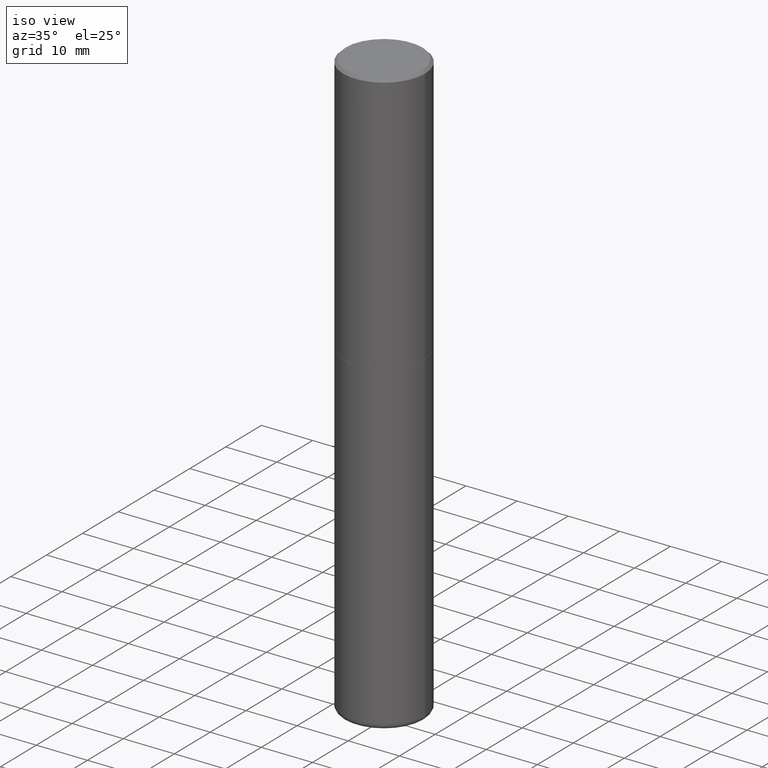
[diagram: clean part render]
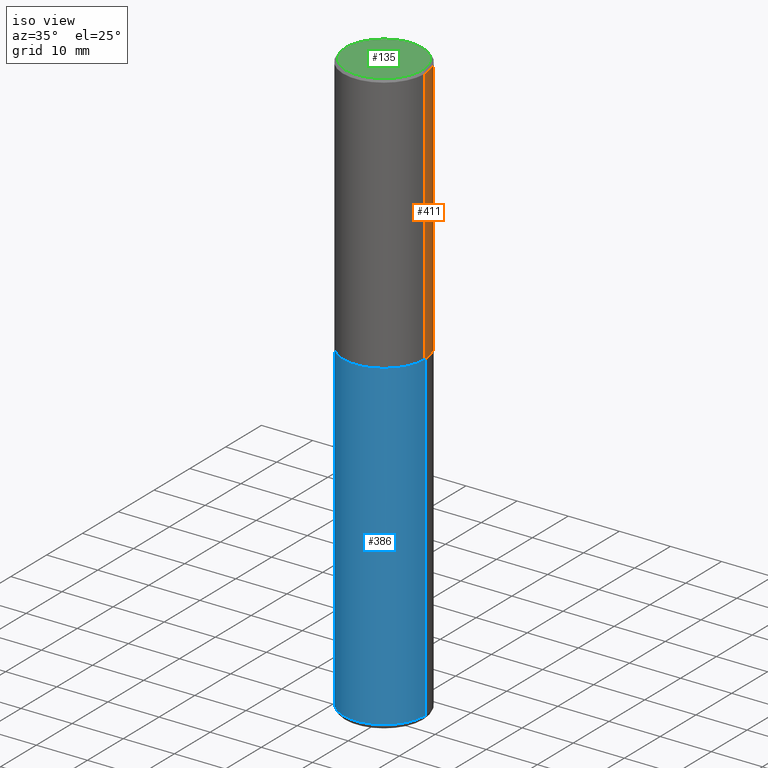
[diagram: same view with three faces highlighted in distinct colors, each labeled with its STEP entity id]
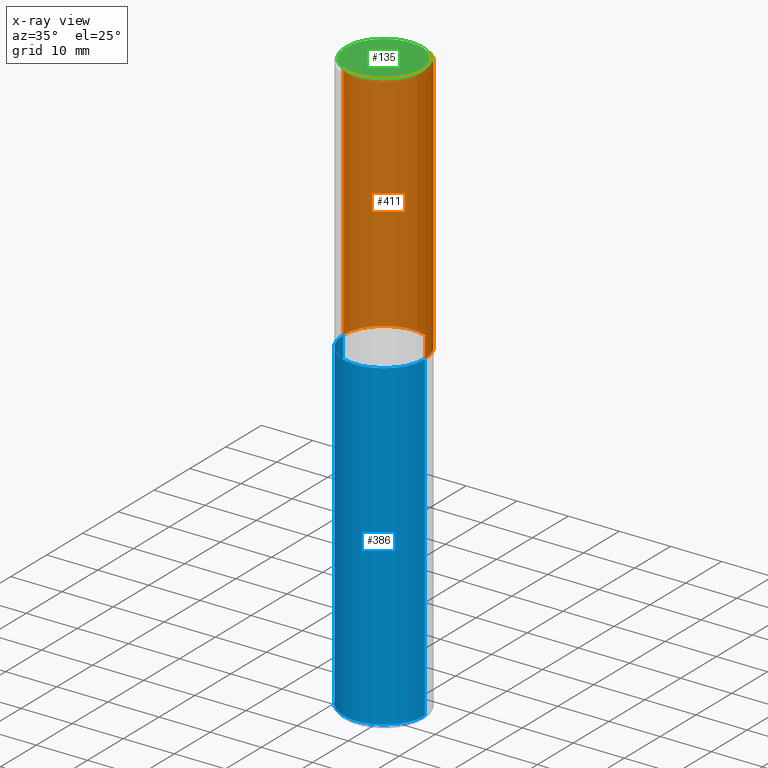
[diagram: x-ray of the same camera — body ghosted, the three highlighted faces saturated]
A machine part, iso view with three faces highlighted in distinct colors.
The next image is the same camera in x-ray (body ghosted, the three faces saturated) — at least one of them is partly hidden behind the body in this view.
Their STEP definitions:

[orange] entity #411 — the highlighted cylindrical surface (partial cylindrical patch) has radius 7.9997 mm, axis along (-0, 0, 1).
#7 = DIRECTION ( 'NONE',  ( 1.000000000000000000, -6.982962677686267499E-15, 0.000000000000000000 ) ) ;
#8 = EDGE_CURVE ( 'NONE', #146, #207, #82, .T. ) ;
#12 = AXIS2_PLACEMENT_3D ( 'NONE', #37, #226, #35 ) ;
#35 = DIRECTION ( 'NONE',  ( 1.000000000000000000, -6.982962677686265922E-15, 0.000000000000000000 ) ) ;
#37 = CARTESIAN_POINT ( 'NONE',  ( 4.890937612370289799E-31, -6.982962677686315028E-17, -0.02000000000000006981 ) ) ;
#40 = EDGE_CURVE ( 'NONE', #53, #216, #125, .T. ) ;
#46 = AXIS2_PLACEMENT_3D ( 'NONE', #96, #171, #7 ) ;
#51 = DIRECTION ( 'NONE',  ( -2.445468806185136597E-29, 3.491481338843145583E-15, 1.000000000000000000 ) ) ;
#53 = VERTEX_POINT ( 'NONE', #55 ) ;
#55 = CARTESIAN_POINT ( 'NONE',  ( -0.3149500000000002853, -1.300587416574145677E-15, -2.006899999999999906 ) ) ;
#82 = LINE ( 'NONE', #220, #211 ) ;
#85 = FACE_OUTER_BOUND ( 'NONE', #376, .T. ) ;
#96 = CARTESIAN_POINT ( 'NONE',  ( 4.907811347132950267E-29, -7.007053898924307914E-15, -2.006899999999999906 ) ) ;
#113 = ORIENTED_EDGE ( 'NONE', *, *, #8, .F. ) ;
#115 = DIRECTION ( 'NONE',  ( 1.000000000000000000, -6.982962677686266711E-15, 4.876176775795936353E-29 ) ) ;
#125 = LINE ( 'NONE', #128, #404 ) ;
#128 = CARTESIAN_POINT ( 'NONE',  ( -0.3149500000000000632, 2.237854346276435985E-15, -1.549218606675782956E-29 ) ) ;
#146 = VERTEX_POINT ( 'NONE', #412 ) ;
#168 = EDGE_CURVE ( 'NONE', #146, #53, #347, .T. ) ;
#171 = DIRECTION ( 'NONE',  ( -2.445468806185136597E-29, 3.491481338843145583E-15, 1.000000000000000000 ) ) ;
#190 = DIRECTION ( 'NONE',  ( -2.445468806185136877E-29, 3.491481338843145188E-15, 1.000000000000000000 ) ) ;
#193 = CARTESIAN_POINT ( 'NONE',  ( -0.3149499999999998967, 2.129454468560425784E-15, -0.02000000000000006981 ) ) ;
#195 = AXIS2_PLACEMENT_3D ( 'NONE', #273, #51, #115 ) ;
#197 = CYLINDRICAL_SURFACE ( 'NONE', #195, 0.3149500000000000632 ) ;
#201 = ORIENTED_EDGE ( 'NONE', *, *, #258, .F. ) ;
#207 = VERTEX_POINT ( 'NONE', #319 ) ;
#211 = VECTOR ( 'NONE', #190, 39.37007874015748143 ) ;
#216 = VERTEX_POINT ( 'NONE', #193 ) ;
#220 = CARTESIAN_POINT ( 'NONE',  ( 0.3149500000000000632, -2.199284095337290265E-15, 1.535751875536930410E-29 ) ) ;
#226 = DIRECTION ( 'NONE',  ( -2.445468806185136597E-29, 3.491481338843145583E-15, 1.000000000000000000 ) ) ;
#227 = DIRECTION ( 'NONE',  ( -2.445468806185136877E-29, 3.491481338843145188E-15, 1.000000000000000000 ) ) ;
#251 = ORIENTED_EDGE ( 'NONE', *, *, #40, .T. ) ;
#258 = EDGE_CURVE ( 'NONE', #207, #216, #393, .T. ) ;
#273 = CARTESIAN_POINT ( 'NONE',  ( 0.000000000000000000, 0.000000000000000000, 0.000000000000000000 ) ) ;
#300 = ORIENTED_EDGE ( 'NONE', *, *, #168, .T. ) ;
#319 = CARTESIAN_POINT ( 'NONE',  ( 0.3149499999999998967, -2.230543471175006266E-15, -0.02000000000000006981 ) ) ;
#347 = CIRCLE ( 'NONE', #46, 0.3149500000000002853 ) ;
#376 = EDGE_LOOP ( 'NONE', ( #300, #251, #201, #113 ) ) ;
#393 = CIRCLE ( 'NONE', #12, 0.3149499999999998967 ) ;
#404 = VECTOR ( 'NONE', #227, 39.37007874015748143 ) ;
#411 = ADVANCED_FACE ( 'NONE', ( #85 ), #197, .T. ) ;
#412 = CARTESIAN_POINT ( 'NONE',  ( 0.3149500000000002853, -9.206337994261599363E-15, -2.006899999999999906 ) ) ;

[blue] entity #386 — the highlighted cylindrical surface (partial cylindrical patch) has radius 7.9997 mm, axis along (-0, 0, 1).
#19 = VERTEX_POINT ( 'NONE', #192 ) ;
#30 = DIRECTION ( 'NONE',  ( -2.445468806185136877E-29, 3.491481338843145188E-15, 1.000000000000000000 ) ) ;
#47 = CARTESIAN_POINT ( 'NONE',  ( -0.3149500000000000077, 2.237854346276435590E-15, -1.549218606675782676E-29 ) ) ;
#56 = VECTOR ( 'NONE', #365, 39.37007874015748143 ) ;
#63 = VECTOR ( 'NONE', #30, 39.37007874015748143 ) ;
#88 = ORIENTED_EDGE ( 'NONE', *, *, #111, .T. ) ;
#92 = DIRECTION ( 'NONE',  ( 1.000000000000000000, -6.982962677686263555E-15, 0.000000000000000000 ) ) ;
#94 = DIRECTION ( 'NONE',  ( -2.445468806185136597E-29, 3.491481338843145583E-15, 1.000000000000000000 ) ) ;
#105 = VERTEX_POINT ( 'NONE', #345 ) ;
#111 = EDGE_CURVE ( 'NONE', #304, #301, #315, .T. ) ;
#129 = CARTESIAN_POINT ( 'NONE',  ( 4.910256815939135870E-29, -7.010545380263151710E-15, -2.007899999999999796 ) ) ;
#134 = CIRCLE ( 'NONE', #221, 0.3149500000000000077 ) ;
#141 = AXIS2_PLACEMENT_3D ( 'NONE', #129, #388, #92 ) ;
#147 = CARTESIAN_POINT ( 'NONE',  ( 0.3149500000000000077, -9.209829475600440793E-15, -2.007899999999999796 ) ) ;
#151 = DIRECTION ( 'NONE',  ( 1.000000000000000000, -6.982962677686266711E-15, 4.876176775795936353E-29 ) ) ;
#153 = CARTESIAN_POINT ( 'NONE',  ( 0.3149500000000000077, -2.199284095337289871E-15, 1.535751875536930130E-29 ) ) ;
#155 = CARTESIAN_POINT ( 'NONE',  ( 0.3149500000000001743, -1.786975064033308982E-14, -4.488199999999999079 ) ) ;
#157 = FACE_OUTER_BOUND ( 'NONE', #373, .T. ) ;
#181 = DIRECTION ( 'NONE',  ( -2.445468806185136597E-29, 3.491481338843145583E-15, 1.000000000000000000 ) ) ;
#191 = EDGE_CURVE ( 'NONE', #105, #19, #416, .T. ) ;
#192 = CARTESIAN_POINT ( 'NONE',  ( -0.3149500000000000077, -9.102651616353041816E-15, -2.007899999999999796 ) ) ;
#217 = ORIENTED_EDGE ( 'NONE', *, *, #281, .T. ) ;
#221 = AXIS2_PLACEMENT_3D ( 'NONE', #392, #94, #233 ) ;
#232 = EDGE_CURVE ( 'NONE', #19, #301, #383, .T. ) ;
#233 = DIRECTION ( 'NONE',  ( 1.000000000000000000, -6.982962677686269866E-15, 0.000000000000000000 ) ) ;
#243 = ORIENTED_EDGE ( 'NONE', *, *, #191, .F. ) ;
#281 = EDGE_CURVE ( 'NONE', #105, #304, #134, .T. ) ;
#301 = VERTEX_POINT ( 'NONE', #147 ) ;
#304 = VERTEX_POINT ( 'NONE', #155 ) ;
#315 = LINE ( 'NONE', #153, #63 ) ;
#342 = CYLINDRICAL_SURFACE ( 'NONE', #417, 0.3149500000000000077 ) ;
#345 = CARTESIAN_POINT ( 'NONE',  ( -0.3149500000000001743, -1.343261219871936712E-14, -4.488199999999999079 ) ) ;
#365 = DIRECTION ( 'NONE',  ( -2.445468806185136877E-29, 3.491481338843145188E-15, 1.000000000000000000 ) ) ;
#368 = ORIENTED_EDGE ( 'NONE', *, *, #232, .F. ) ;
#372 = CARTESIAN_POINT ( 'NONE',  ( 0.000000000000000000, 0.000000000000000000, 0.000000000000000000 ) ) ;
#373 = EDGE_LOOP ( 'NONE', ( #243, #217, #88, #368 ) ) ;
#383 = CIRCLE ( 'NONE', #141, 0.3149500000000000077 ) ;
#386 = ADVANCED_FACE ( 'NONE', ( #157 ), #342, .T. ) ;
#388 = DIRECTION ( 'NONE',  ( -2.445468806185136597E-29, 3.491481338843145583E-15, 1.000000000000000000 ) ) ;
#392 = CARTESIAN_POINT ( 'NONE',  ( 1.097575309592012950E-28, -1.567046654499580152E-14, -4.488199999999999079 ) ) ;
#416 = LINE ( 'NONE', #47, #56 ) ;
#417 = AXIS2_PLACEMENT_3D ( 'NONE', #372, #181, #151 ) ;

[green] entity #135 — the highlighted planar face has unit normal (0, -0, -1).
#6 = EDGE_CURVE ( 'NONE', #248, #145, #142, .T. ) ;
#15 = DIRECTION ( 'NONE',  ( 1.000000000000000000, -6.982962677686265922E-15, 4.874125435057328359E-29 ) ) ;
#25 = AXIS2_PLACEMENT_3D ( 'NONE', #381, #222, #189 ) ;
#32 = AXIS2_PLACEMENT_3D ( 'NONE', #206, #246, #15 ) ;
#77 = AXIS2_PLACEMENT_3D ( 'NONE', #149, #280, #402 ) ;
#135 = ADVANCED_FACE ( 'NONE', ( #287 ), #256, .F. ) ;
#139 = EDGE_LOOP ( 'NONE', ( #275, #282 ) ) ;
#142 = CIRCLE ( 'NONE', #77, 0.2949499999999996014 ) ;
#145 = VERTEX_POINT ( 'NONE', #293 ) ;
#149 = CARTESIAN_POINT ( 'NONE',  ( -6.889419334612450925E-45, 9.836264924510951028E-31, 2.817218243466271259E-16 ) ) ;
#189 = DIRECTION ( 'NONE',  ( -1.000000000000000000, 6.982962677686265922E-15, -4.876176775795935793E-29 ) ) ;
#206 = CARTESIAN_POINT ( 'NONE',  ( -6.889419334612450925E-45, 9.836264924510951028E-31, 2.817218243466271259E-16 ) ) ;
#222 = DIRECTION ( 'NONE',  ( 2.438088387897960049E-29, -3.491481338843145188E-15, -1.000000000000000000 ) ) ;
#228 = CARTESIAN_POINT ( 'NONE',  ( -0.2949499999999996014, 2.094539655171994135E-15, 2.817218243466126306E-16 ) ) ;
#246 = DIRECTION ( 'NONE',  ( -2.445468806185136597E-29, 3.491481338843145583E-15, 1.000000000000000000 ) ) ;
#248 = VERTEX_POINT ( 'NONE', #228 ) ;
#256 = PLANE ( 'NONE',  #25 ) ;
#275 = ORIENTED_EDGE ( 'NONE', *, *, #6, .T. ) ;
#280 = DIRECTION ( 'NONE',  ( -2.445468806185136597E-29, 3.491481338843145583E-15, 1.000000000000000000 ) ) ;
#282 = ORIENTED_EDGE ( 'NONE', *, *, #333, .T. ) ;
#287 = FACE_OUTER_BOUND ( 'NONE', #139, .T. ) ;
#293 = CARTESIAN_POINT ( 'NONE',  ( 0.2949499999999996014, -2.127023677808857708E-15, 2.817218243466417691E-16 ) ) ;
#333 = EDGE_CURVE ( 'NONE', #145, #248, #415, .T. ) ;
#381 = CARTESIAN_POINT ( 'NONE',  ( 2.059624841783561302E-15, 0.2949499999999996014, -8.889515087184707120E-16 ) ) ;
#402 = DIRECTION ( 'NONE',  ( 1.000000000000000000, -6.982962677686265922E-15, 4.874125435057328359E-29 ) ) ;
#415 = CIRCLE ( 'NONE', #32, 0.2949499999999996014 ) ;